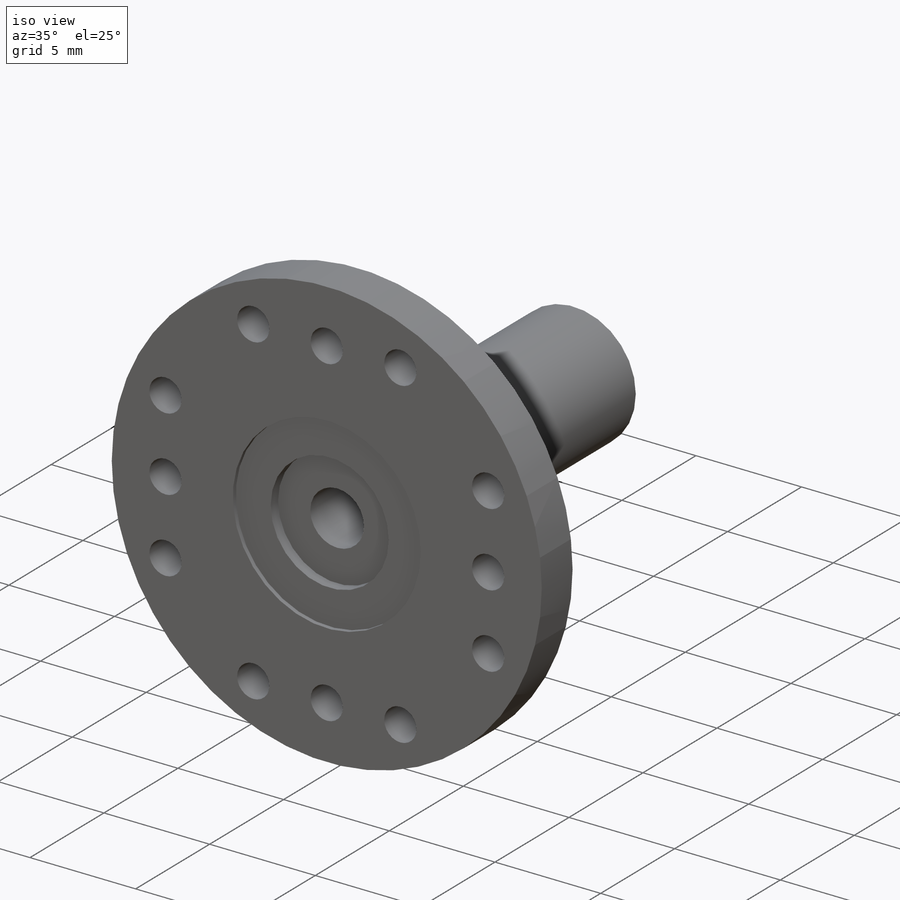
[diagram: iso view]
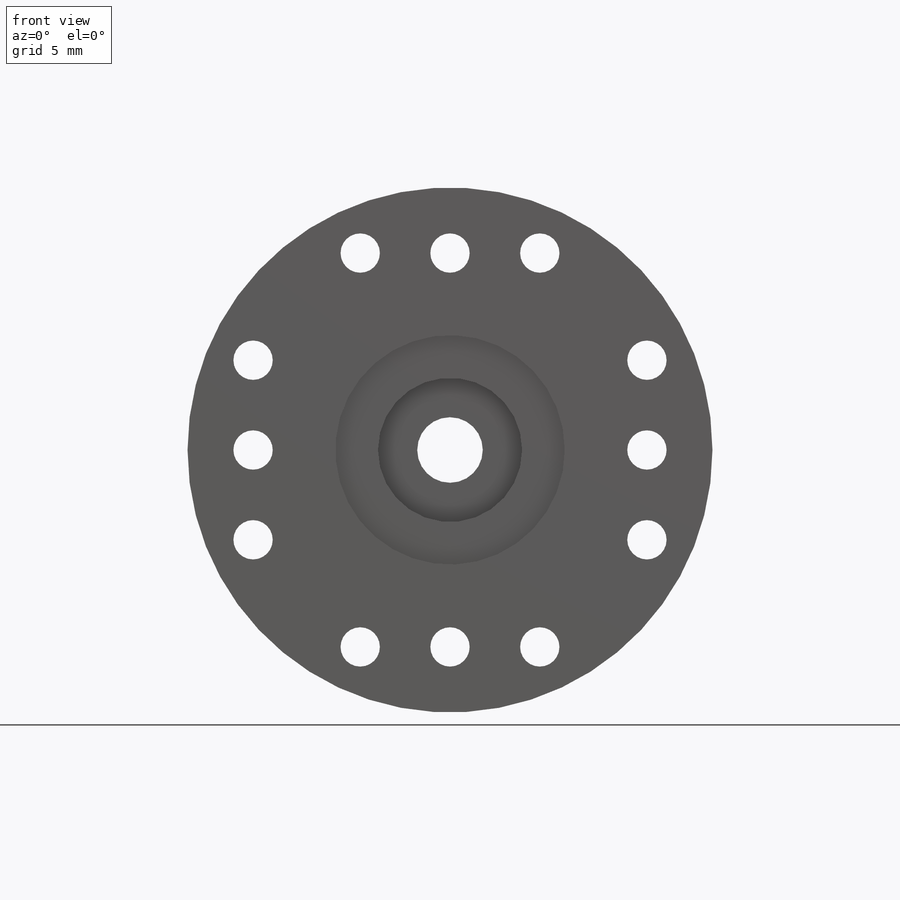
[diagram: front view]
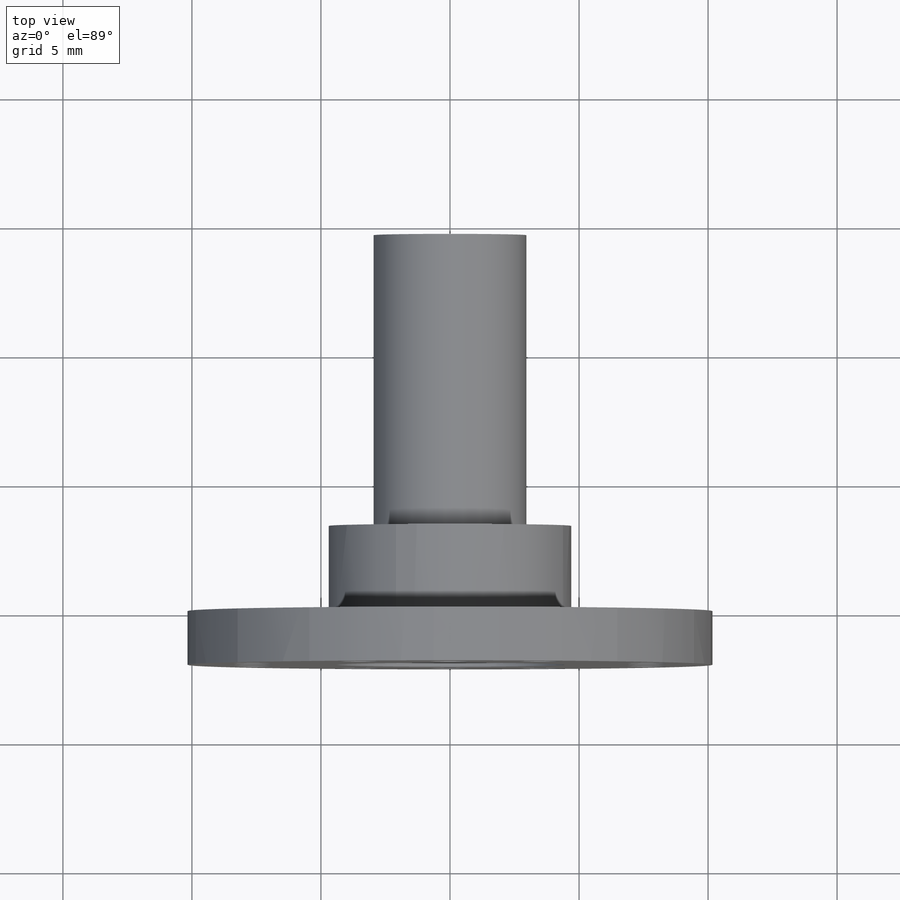
[diagram: top view]
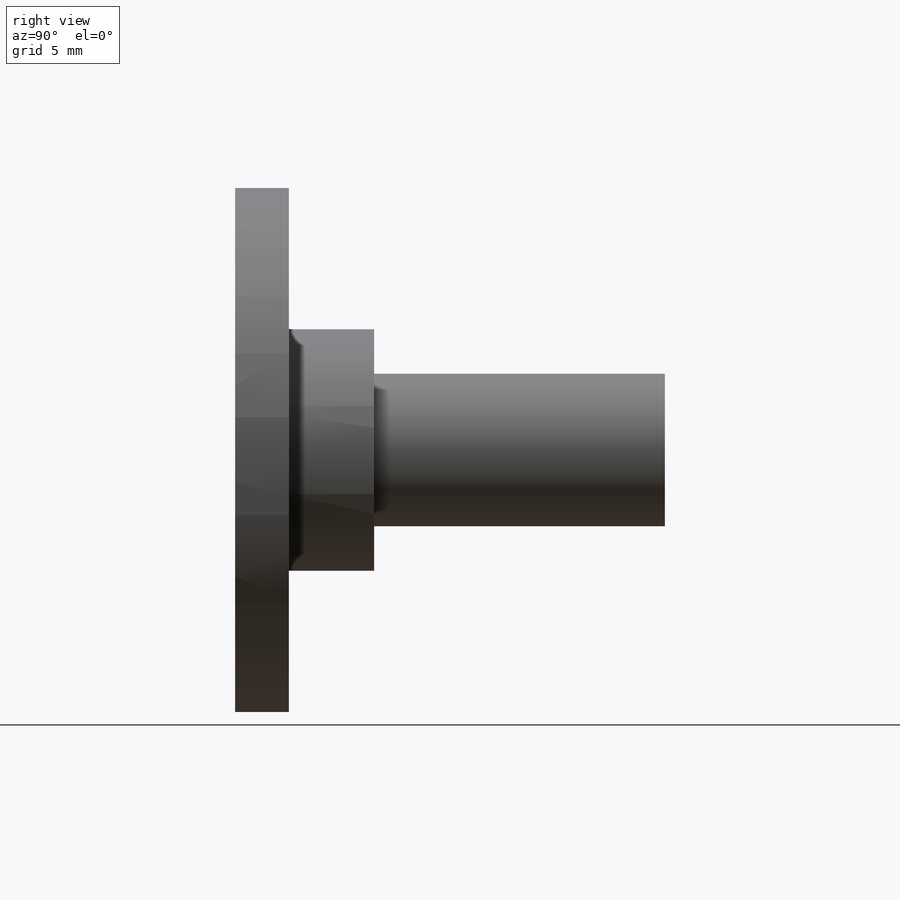
[diagram: right view]
SOLIDWORKS PART (.sldprt)
format: sldprt  version: not decoded by parser v0  size: 464,384 bytes
history: native  units: mm
features: sketch x7, cut_extrude x4, extrude x3, material x1, pattern_circular x1 (+11 scaffold rows collapsed)
feature tree (27):
  scaffold x11  (default folders/planes/origin — collapsed)
  material  "PS Medium/High Flow"
  sketch  "Sketch1"  dims[D1=20.3454mm]
  extrude  "Extrude1"  Depth=2.0828mm
  sketch  "Sketch2"  dims[D1=9.398mm]
  extrude  "Extrude2"  Depth=3.302mm
  sketch  "Sketch3"  dims[D1=5.9182mm]
  extrude  "Extrude3"  Depth=11.27mm
  sketch  "Sketch4"  dims[D1=8.89mm]
  cut_extrude  "Cut-Extrude1"  Depth=0.2mm
  sketch  "Sketch6"  dims[D1=5.588mm D2=0.508mm]
  cut_extrude  "Cut-Extrude2"  Depth=0.5mm
  sketch  "Sketch7"  dims[D1=2.54mm]
  cut_extrude  "Cut-Extrude3"  [1 undecoded]
  sketch  "Sketch8"  dims[c1.D1=1.524mm c1.D3=1.524mm c1.D4=1.524mm c1.D2=2.54mm c2.D3=3.4798mm c2.D4=~4.308202mm]
  cut_extrude  "Cut-Extrude4"  [1 undecoded]
  pattern_circular  "CirPattern1"  Count=4 Angle=360deg
decode coverage: 13 of 15 modeling features carry decoded parameters
note: ~ marks probable driven/reference dimensions
note: 2 parameter values undecoded
note: suppression state not decoded; provenance and decode notes live in map.json
